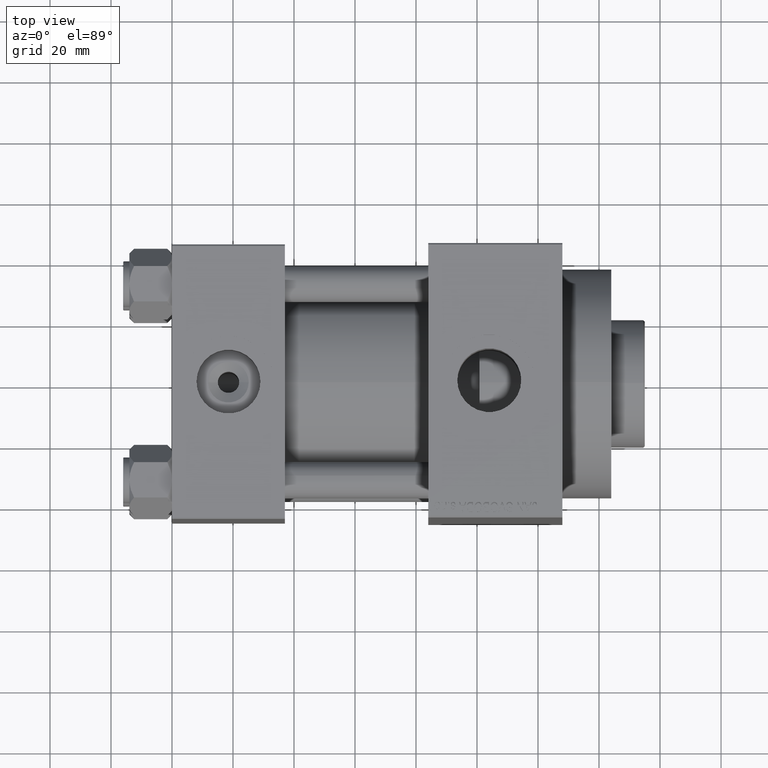
[diagram: clean part render]
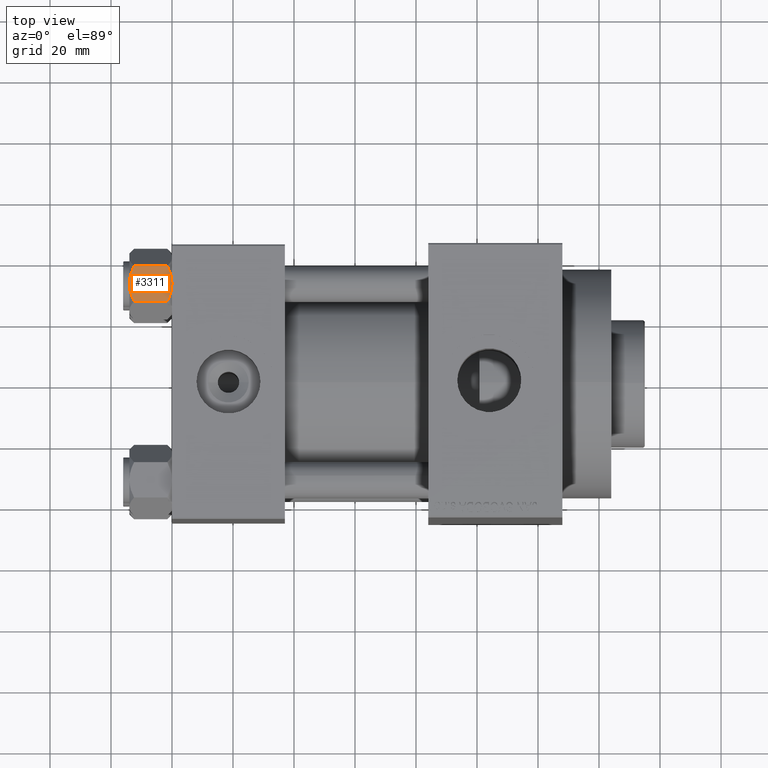
[diagram: same view with one face highlighted and labeled with its STEP entity id]
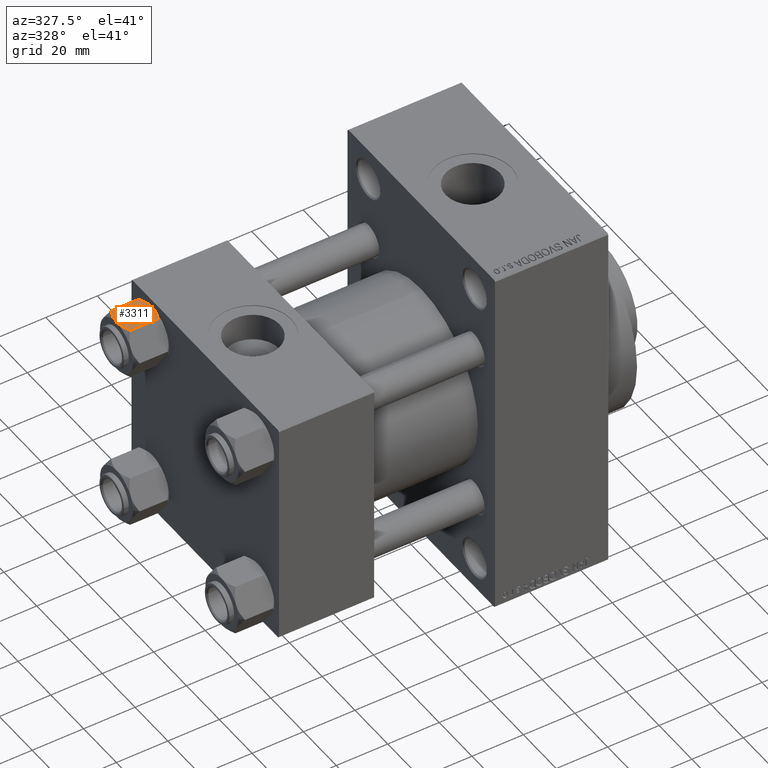
[diagram: same view with one face highlighted and labeled with its STEP entity id]
A machine part, top view. The second image highlights one B-rep face of the part: STEP entity #3311.
A second angle (auxiliary view) of the same face is appended — the face is thin or edge-on in the first view.
In plain terms, the highlighted planar face has unit normal (0, -0, -1).
Its self-contained STEP definition (entity closure, byte-faithful):
#1436 = VECTOR ( 'NONE', #34113, 1000.000000000000000 ) ;
#1655 = LINE ( 'NONE', #34584, #1436 ) ;
#1864 = CARTESIAN_POINT ( 'NONE',  ( -5.810000000000000497, -10.06321519197517844, -12.44321519197518633 ) ) ;
#2399 = EDGE_CURVE ( 'NONE', #46057, #30546, #46958, .T. ) ;
#2555 = CARTESIAN_POINT ( 'NONE',  ( 1.502314598737159623E-15, -10.06321519197518199, 0.000000000000000000 ) ) ;
#3300 = CARTESIAN_POINT ( 'NONE',  ( 1.772424303831126258, -10.06321519197517311, -0.1338870921722345175 ) ) ;
#3311 = ADVANCED_FACE ( 'NONE', ( #21319 ), #14136, .F. ) ;
#4349 = CARTESIAN_POINT ( 'NONE',  ( -5.810000000000000497, -10.06321519197517844, -1.556784808024813893 ) ) ;
#4961 = ORIENTED_EDGE ( 'NONE', *, *, #24034, .F. ) ;
#5195 = CARTESIAN_POINT ( 'NONE',  ( -0.5112014849988885112, -10.06321519197517844, -13.99019602057109246 ) ) ;
#5429 = CARTESIAN_POINT ( 'NONE',  ( -0.2543996698847484916, -10.06321519197517844, -14.00000000000000888 ) ) ;
#5519 = EDGE_CURVE ( 'NONE', #38952, #13278, #19981, .T. ) ;
#6855 = CARTESIAN_POINT ( 'NONE',  ( 0.5112014849988879561, -10.06321519197517667, -0.009803979428909967431 ) ) ;
#6969 = DIRECTION ( 'NONE',  ( -1.492877345935290102E-16, 1.000000000000000000, 0.000000000000000000 ) ) ;
#8993 = CARTESIAN_POINT ( 'NONE',  ( -2.013954290287968352, -10.06321519197517844, -0.1570111679759963463 ) ) ;
#10466 = CARTESIAN_POINT ( 'NONE',  ( 1.502314598737159623E-15, -10.06321519197518199, 0.000000000000000000 ) ) ;
#10551 = CARTESIAN_POINT ( 'NONE',  ( 5.810000000000000497, -10.06321519197517667, -14.00000000000000000 ) ) ;
#11185 = CARTESIAN_POINT ( 'NONE',  ( 5.810000000000000497, -10.06321519197517667, -1.556784808024811895 ) ) ;
#13278 = VERTEX_POINT ( 'NONE', #14619 ) ;
#14136 = PLANE ( 'NONE',  #16373 ) ;
#14256 = CARTESIAN_POINT ( 'NONE',  ( 3.960942496020604331, -10.06321519197518022, -0.7115728323610380768 ) ) ;
#14619 = CARTESIAN_POINT ( 'NONE',  ( -5.810000000000000497, -10.06321519197517844, -12.44321519197518633 ) ) ;
#14962 = CARTESIAN_POINT ( 'NONE',  ( 1.502314598737159623E-15, -10.06321519197518199, -14.00000000000000000 ) ) ;
#16373 = AXIS2_PLACEMENT_3D ( 'NONE', #10551, #6969, #26942 ) ;
#17840 = CARTESIAN_POINT ( 'NONE',  ( 2.508586450168040827, -10.06321519197517667, -0.2975752632032254708 ) ) ;
#17939 = CARTESIAN_POINT ( 'NONE',  ( 3.474497094393254493, -10.06321519197517667, -13.42730390989572520 ) ) ;
#18178 = CARTESIAN_POINT ( 'NONE',  ( 5.810000000000000497, -10.06321519197517667, -12.44321519197518811 ) ) ;
#18376 = EDGE_CURVE ( 'NONE', #20614, #46057, #37916, .T. ) ;
#19518 = CARTESIAN_POINT ( 'NONE',  ( -1.772424303831127590, -10.06321519197517667, -13.86611290782776784 ) ) ;
#19981 = B_SPLINE_CURVE_WITH_KNOTS ( 'NONE', 3,
 ( #23577, #5429, #5195, #34323, #19518, #20000, #34561, #41490, #1864 ),
 .UNSPECIFIED., .F., .F.,
 ( 4, 2, 1, 2, 4 ),
 ( 0.02074012592819901926, 0.02149589804477578664, 0.02225167016135255055, 0.02376321439450608183, 0.02678630286081314094 ),
 .UNSPECIFIED. ) ;
#20000 = CARTESIAN_POINT ( 'NONE',  ( -2.508586450168039494, -10.06321519197517844, -13.70242473679677353 ) ) ;
#20614 = VERTEX_POINT ( 'NONE', #4349 ) ;
#20696 = CARTESIAN_POINT ( 'NONE',  ( -4.900668367960793859, -10.06321519197517667, -1.121556683709771463 ) ) ;
#21319 = FACE_OUTER_BOUND ( 'NONE', #36694, .T. ) ;
#21803 = ORIENTED_EDGE ( 'NONE', *, *, #5519, .F. ) ;
#23133 = EDGE_CURVE ( 'NONE', #31803, #30546, #39906, .T. ) ;
#23568 = CARTESIAN_POINT ( 'NONE',  ( -5.810000000000000497, -10.06321519197517844, -1.556784808024813893 ) ) ;
#23577 = CARTESIAN_POINT ( 'NONE',  ( 1.502314598737159623E-15, -10.06321519197518199, -14.00000000000000000 ) ) ;
#24034 = EDGE_CURVE ( 'NONE', #31803, #38952, #24508, .T. ) ;
#24508 = B_SPLINE_CURVE_WITH_KNOTS ( 'NONE', 3,
 ( #18178, #25562, #32748, #36559, #17939, #43729, #32517, #47076 ),
 .UNSPECIFIED., .F., .F.,
 ( 4, 2, 2, 4 ),
 ( 0.01467889604968879158, 0.01619420351931634763, 0.01770951098894390369, 0.02074012592819901926 ),
 .UNSPECIFIED. ) ;
#25006 = CARTESIAN_POINT ( 'NONE',  ( 1.502314598737159623E-15, -10.06321519197518199, 0.000000000000000000 ) ) ;
#25562 = CARTESIAN_POINT ( 'NONE',  ( 5.359707691559671972, -10.06321519197517667, -12.66836134619534882 ) ) ;
#25640 = VECTOR ( 'NONE', #32744, 1000.000000000000000 ) ;
#26725 = ORIENTED_EDGE ( 'NONE', *, *, #2399, .F. ) ;
#26942 = DIRECTION ( 'NONE',  ( -1.000000000000000000, -1.492877345935290102E-16, 0.000000000000000000 ) ) ;
#27378 = CARTESIAN_POINT ( 'NONE',  ( -1.020132157807625450, -10.06321519197517489, 4.052205619664572033E-15 ) ) ;
#27836 = CARTESIAN_POINT ( 'NONE',  ( -5.359707691559672860, -10.06321519197517844, -1.331638653804651851 ) ) ;
#28081 = CARTESIAN_POINT ( 'NONE',  ( -3.474497094393254937, -10.06321519197517844, -0.5726960901042742469 ) ) ;
#28811 = CARTESIAN_POINT ( 'NONE',  ( 4.908816193182381937, -10.06321519197517844, -1.106192904616003059 ) ) ;
#29275 = CARTESIAN_POINT ( 'NONE',  ( 5.810000000000000497, -10.06321519197517667, -12.44321519197518811 ) ) ;
#30546 = VERTEX_POINT ( 'NONE', #11185 ) ;
#31518 = EDGE_CURVE ( 'NONE', #13278, #20614, #1655, .T. ) ;
#31803 = VERTEX_POINT ( 'NONE', #29275 ) ;
#32517 = CARTESIAN_POINT ( 'NONE',  ( 1.020132157807625228, -10.06321519197517667, -14.00000000000000533 ) ) ;
#32744 = DIRECTION ( 'NONE',  ( -0.000000000000000000, -0.000000000000000000, 1.000000000000000000 ) ) ;
#32748 = CARTESIAN_POINT ( 'NONE',  ( 4.900668367960795635, -10.06321519197517667, -12.87844331629023564 ) ) ;
#34113 = DIRECTION ( 'NONE',  ( -0.000000000000000000, -0.000000000000000000, 1.000000000000000000 ) ) ;
#34323 = CARTESIAN_POINT ( 'NONE',  ( -1.018274738099084864, -10.06321519197518022, -13.95177257919929303 ) ) ;
#34561 = CARTESIAN_POINT ( 'NONE',  ( -3.960942496020602555, -10.06321519197517844, -13.28842716763896270 ) ) ;
#34584 = CARTESIAN_POINT ( 'NONE',  ( -5.810000000000000497, -10.06321519197517844, -14.00000000000000000 ) ) ;
#35993 = CARTESIAN_POINT ( 'NONE',  ( 1.018274738099083976, -10.06321519197517667, -0.04822742080070548110 ) ) ;
#36559 = CARTESIAN_POINT ( 'NONE',  ( 3.958929922320421291, -10.06321519197517489, -13.25786014976460514 ) ) ;
#36694 = EDGE_LOOP ( 'NONE', ( #4961, #38422, #26725, #38033, #38721, #21803 ) ) ;
#37391 = CARTESIAN_POINT ( 'NONE',  ( 5.810000000000000497, -10.06321519197517667, -1.556784808024811895 ) ) ;
#37916 = B_SPLINE_CURVE_WITH_KNOTS ( 'NONE', 3,
 ( #23568, #27836, #20696, #41723, #28081, #8993, #27378, #2555 ),
 .UNSPECIFIED., .F., .F.,
 ( 4, 2, 2, 4 ),
 ( 0.01467889604968879332, 0.01619420351931635110, 0.01770951098894390716, 0.02074012592819902273 ),
 .UNSPECIFIED. ) ;
#38033 = ORIENTED_EDGE ( 'NONE', *, *, #18376, .F. ) ;
#38422 = ORIENTED_EDGE ( 'NONE', *, *, #23133, .T. ) ;
#38721 = ORIENTED_EDGE ( 'NONE', *, *, #31518, .F. ) ;
#38952 = VERTEX_POINT ( 'NONE', #14962 ) ;
#39579 = CARTESIAN_POINT ( 'NONE',  ( 0.2543996698847484361, -10.06321519197517667, 4.398642095091581661E-15 ) ) ;
#39906 = LINE ( 'NONE', #46372, #25640 ) ;
#41490 = CARTESIAN_POINT ( 'NONE',  ( -4.908816193182382825, -10.06321519197518022, -12.89380709538399650 ) ) ;
#41723 = CARTESIAN_POINT ( 'NONE',  ( -3.958929922320420403, -10.06321519197517844, -0.7421398502353970805 ) ) ;
#43729 = CARTESIAN_POINT ( 'NONE',  ( 2.013954290287968796, -10.06321519197517667, -13.84298883202400532 ) ) ;
#46057 = VERTEX_POINT ( 'NONE', #10466 ) ;
#46372 = CARTESIAN_POINT ( 'NONE',  ( 5.810000000000000497, -10.06321519197517667, -14.00000000000000000 ) ) ;
#46958 = B_SPLINE_CURVE_WITH_KNOTS ( 'NONE', 3,
 ( #25006, #39579, #6855, #35993, #3300, #17840, #14256, #28811, #37391 ),
 .UNSPECIFIED., .F., .F.,
 ( 4, 2, 1, 2, 4 ),
 ( 0.02074012592819902273, 0.02149589804477578664, 0.02225167016135255402, 0.02376321439450608530, 0.02678630286081314441 ),
 .UNSPECIFIED. ) ;
#47076 = CARTESIAN_POINT ( 'NONE',  ( 1.502314598737159623E-15, -10.06321519197518199, -14.00000000000000000 ) ) ;